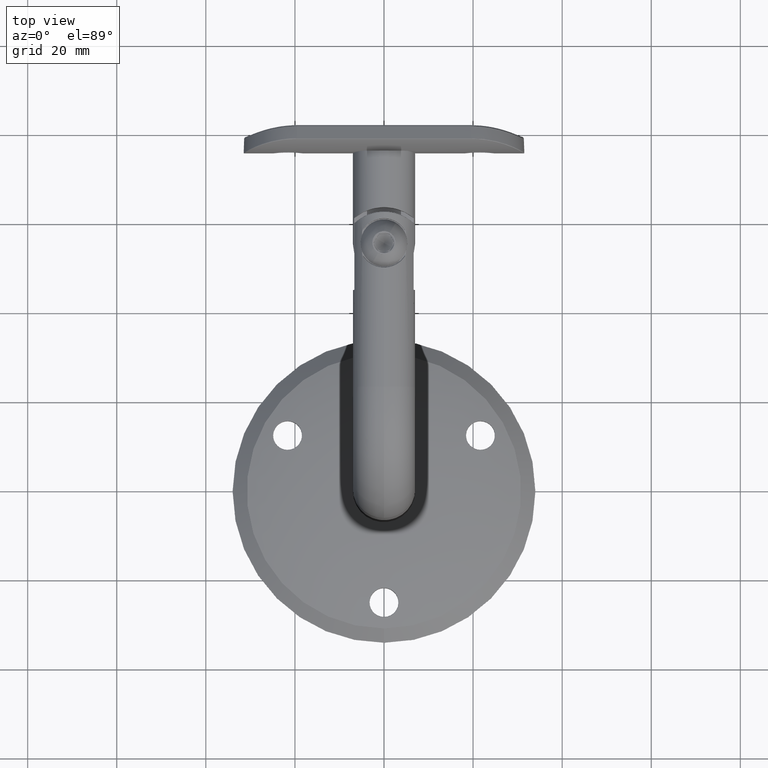
[diagram: clean part render]
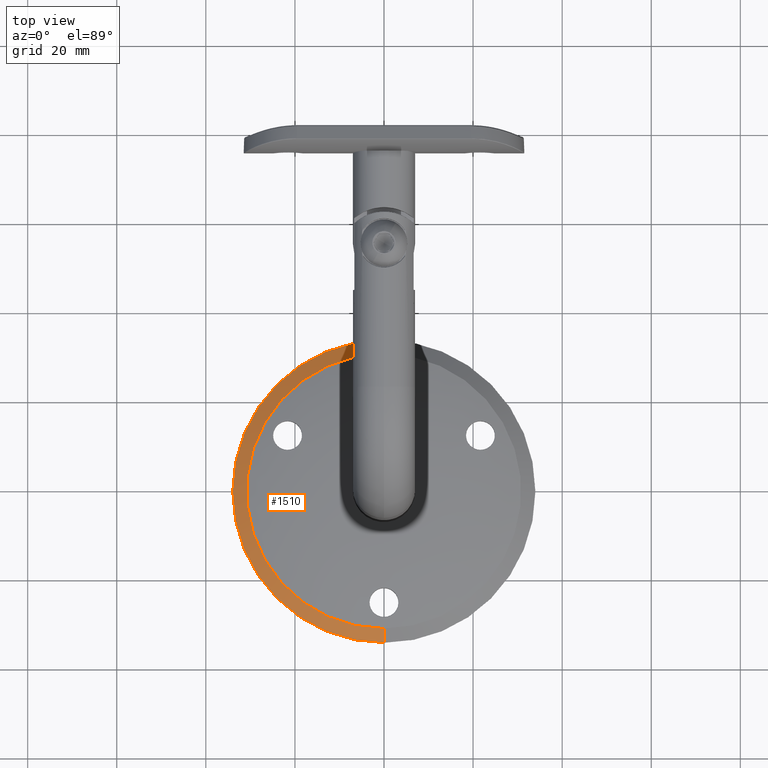
[diagram: same view with one face highlighted and labeled with its STEP entity id]
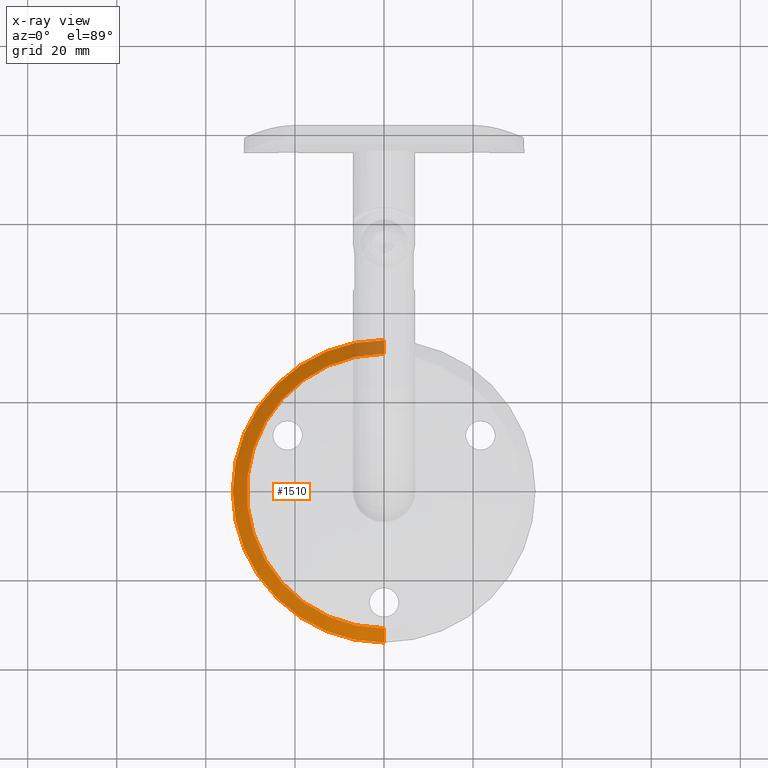
[diagram: x-ray of the same camera — body ghosted, the highlighted face saturated]
A machine part, top view. The second image highlights one B-rep face of the part: STEP entity #1510.
The next image is the same camera in x-ray: the body ghosted, the highlighted face saturated — about 7% of this face is hidden behind the body in this view.
In plain terms, the highlighted conical surface has half-angle 49.03 deg.
Its self-contained STEP definition (entity closure, byte-faithful):
#18 = CIRCLE ( 'NONE', #21489, 33.95096606822667695 ) ;
#1510 = ADVANCED_FACE ( 'NONE', ( #14558 ), #2369, .T. ) ;
#2369 = CONICAL_SURFACE ( 'NONE', #41809, 34.00000000000000000, 0.8557400374771453322 ) ;
#4206 = VERTEX_POINT ( 'NONE', #31090 ) ;
#4540 = CARTESIAN_POINT ( 'NONE',  ( 0.000000000000000000, 3.112813086265143525, 0.000000000000000000 ) ) ;
#5577 = DIRECTION ( 'NONE',  ( 9.246773247622443815E-17, -0.6556599193418465310, 0.7550563357582289470 ) ) ;
#7210 = ORIENTED_EDGE ( 'NONE', *, *, #23806, .F. ) ;
#7308 = CARTESIAN_POINT ( 'NONE',  ( 0.000000000000000000, 3.070234033247562611, 0.000000000000000000 ) ) ;
#7535 = DIRECTION ( 'NONE',  ( 0.000000000000000000, 0.000000000000000000, 1.000000000000000000 ) ) ;
#8482 = CARTESIAN_POINT ( 'NONE',  ( 3.967100307032746303E-15, 5.817115097620641606, 30.83669858405994901 ) ) ;
#8515 = AXIS2_PLACEMENT_3D ( 'NONE', #9250, #41549, #35152 ) ;
#9250 = CARTESIAN_POINT ( 'NONE',  ( 0.000000000000000000, 5.817115097620641606, 0.000000000000000000 ) ) ;
#9363 = ORIENTED_EDGE ( 'NONE', *, *, #31411, .T. ) ;
#9495 = CARTESIAN_POINT ( 'NONE',  ( 0.000000000000000000, 3.070234033247562611, -34.00000000000000000 ) ) ;
#10768 = VECTOR ( 'NONE', #38100, 999.9999999999998863 ) ;
#13147 = CIRCLE ( 'NONE', #8515, 30.83669858405994901 ) ;
#13354 = EDGE_CURVE ( 'NONE', #34238, #4206, #41172, .T. ) ;
#13955 = CARTESIAN_POINT ( 'NONE',  ( 4.157794192341420514E-15, 3.112813086265143525, 33.95096606822667695 ) ) ;
#14380 = DIRECTION ( 'NONE',  ( 0.000000000000000000, 0.000000000000000000, -1.000000000000000000 ) ) ;
#14558 = FACE_OUTER_BOUND ( 'NONE', #40917, .T. ) ;
#19169 = ORIENTED_EDGE ( 'NONE', *, *, #29903, .T. ) ;
#20061 = VERTEX_POINT ( 'NONE', #13955 ) ;
#20784 = LINE ( 'NONE', #28256, #21260 ) ;
#21260 = VECTOR ( 'NONE', #5577, 999.9999999999998863 ) ;
#21489 = AXIS2_PLACEMENT_3D ( 'NONE', #4540, #27215, #7535 ) ;
#22248 = ORIENTED_EDGE ( 'NONE', *, *, #13354, .T. ) ;
#22548 = CARTESIAN_POINT ( 'NONE',  ( 0.000000000000000000, 5.817115097620641606, -30.83669858405994901 ) ) ;
#23806 = EDGE_CURVE ( 'NONE', #39252, #20061, #20784, .T. ) ;
#27215 = DIRECTION ( 'NONE',  ( 0.000000000000000000, 1.000000000000000000, 0.000000000000000000 ) ) ;
#28256 = CARTESIAN_POINT ( 'NONE',  ( 4.163799117101000559E-15, 3.070234033247562611, 34.00000000000000000 ) ) ;
#29412 = DIRECTION ( 'NONE',  ( -0.000000000000000000, -1.000000000000000000, -0.000000000000000000 ) ) ;
#29903 = EDGE_CURVE ( 'NONE', #4206, #20061, #18, .T. ) ;
#31090 = CARTESIAN_POINT ( 'NONE',  ( 0.000000000000000000, 3.112813086265143525, -33.95096606822667695 ) ) ;
#31411 = EDGE_CURVE ( 'NONE', #39252, #34238, #13147, .T. ) ;
#34238 = VERTEX_POINT ( 'NONE', #22548 ) ;
#35152 = DIRECTION ( 'NONE',  ( 0.000000000000000000, 0.000000000000000000, 1.000000000000000000 ) ) ;
#38100 = DIRECTION ( 'NONE',  ( 0.000000000000000000, -0.6556599193418465310, -0.7550563357582289470 ) ) ;
#39252 = VERTEX_POINT ( 'NONE', #8482 ) ;
#40917 = EDGE_LOOP ( 'NONE', ( #7210, #9363, #22248, #19169 ) ) ;
#41172 = LINE ( 'NONE', #9495, #10768 ) ;
#41549 = DIRECTION ( 'NONE',  ( -0.000000000000000000, -1.000000000000000000, -0.000000000000000000 ) ) ;
#41809 = AXIS2_PLACEMENT_3D ( 'NONE', #7308, #29412, #14380 ) ;